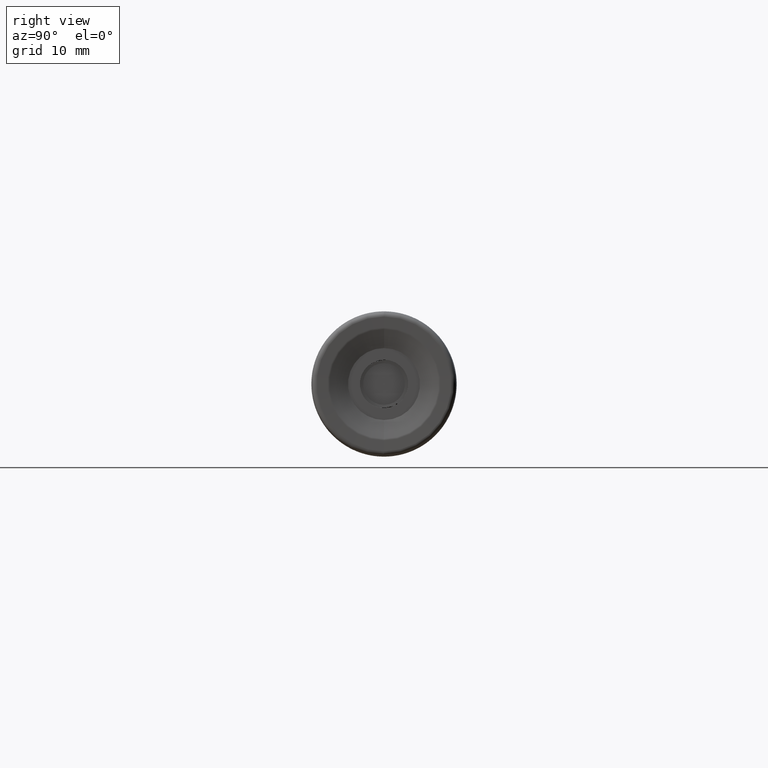
[diagram: clean part render]
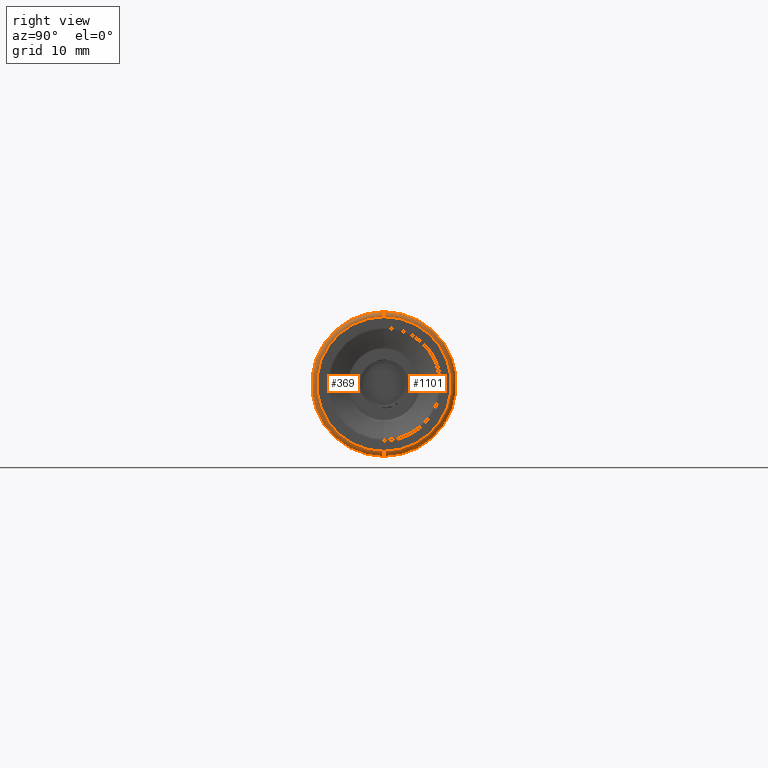
[diagram: same view with one multi-face feature highlighted, each face labeled with its STEP entity id]
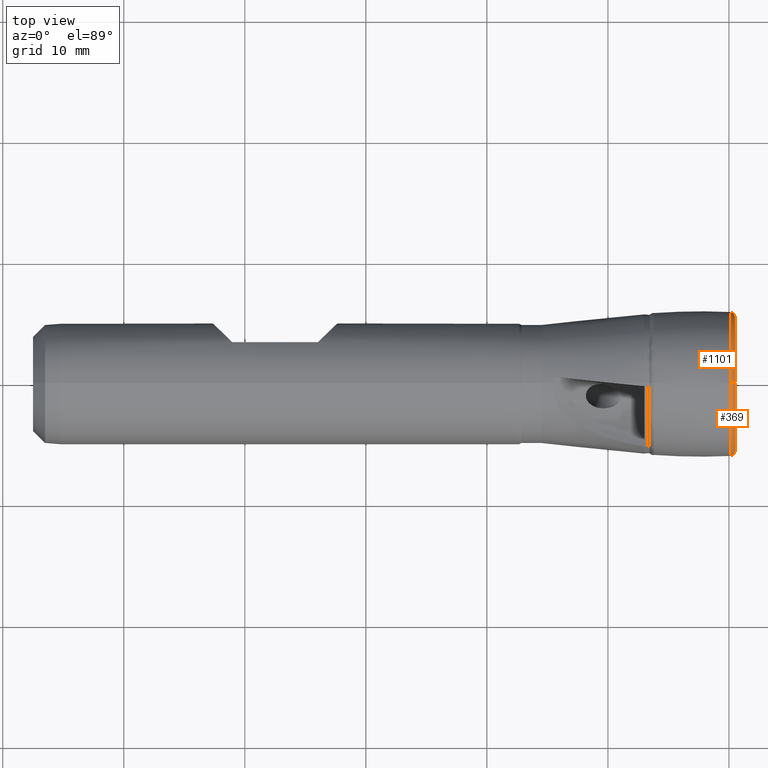
[diagram: same view with one multi-face feature highlighted, each face labeled with its STEP entity id]
A machine part, right view. The highlighted faces form ONE feature: a constant-radius fillet chain: 2 tangent blend faces with common blend radius 0.3973 mm. The faces share edges in the B-rep.
A second angle (top view) of the same feature is appended — it is thin or edge-on in the first view.
Their STEP definitions:
[1] entity #1101 (Torus):
#64 = AXIS2_PLACEMENT_3D ( 'NONE', #2902, #2903, #2904 ) ;
#66 = AXIS2_PLACEMENT_3D ( 'NONE', #2905, #2906, #2907 ) ;
#67 = CIRCLE ( 'NONE', #69, 5.977264221461132900 ) ;
#69 = AXIS2_PLACEMENT_3D ( 'NONE', #2896, #2897, #2898 ) ;
#72 = CIRCLE ( 'NONE', #66, 0.3972863898013979100 ) ;
#74 = CIRCLE ( 'NONE', #64, 0.3972863898013979100 ) ;
#1101 = ADVANCED_FACE ( 'NONE', ( #2154 ), #1389, .T. ) ;
#1217 = EDGE_CURVE ( 'NONE', #2425, #2335, #1656, .T. ) ;
#1221 = EDGE_CURVE ( 'NONE', #2437, #2424, #67, .T. ) ;
#1223 = EDGE_CURVE ( 'NONE', #2424, #2335, #74, .T. ) ;
#1224 = EDGE_CURVE ( 'NONE', #2437, #2425, #72, .T. ) ;
#1246 = ORIENTED_EDGE ( 'NONE', *, *, #1217, .F. ) ;
#1302 = ORIENTED_EDGE ( 'NONE', *, *, #1224, .F. ) ;
#1305 = ORIENTED_EDGE ( 'NONE', *, *, #1223, .T. ) ;
#1311 = ORIENTED_EDGE ( 'NONE', *, *, #1221, .T. ) ;
#1313 = EDGE_LOOP ( 'NONE', ( #1311, #1305, #1246, #1302 ) ) ;
#1389 = TOROIDAL_SURFACE ( 'NONE', #1416, 5.580082788689710900, 0.3972863898013978500 ) ;
#1416 = AXIS2_PLACEMENT_3D ( 'NONE', #2160, #2149, #2162 ) ;
#1648 = AXIS2_PLACEMENT_3D ( 'NONE', #2885, #2886, #2887 ) ;
#1656 = CIRCLE ( 'NONE', #1648, 5.567777955433022000 ) ;
#2149 = DIRECTION ( 'NONE',  ( 1.000000000000000000, -0.0000000000000000000, -0.0000000000000000000 ) ) ;
#2154 = FACE_OUTER_BOUND ( 'NONE', #1313, .T. ) ;
#2160 = CARTESIAN_POINT ( 'NONE',  ( 0.1027136101986048000, 0.0000000000000000000, 0.0000000000000000000 ) ) ;
#2162 = DIRECTION ( 'NONE',  ( 0.0000000000000000000, 0.0000000000000000000, -1.000000000000000000 ) ) ;
#2335 = VERTEX_POINT ( 'NONE', #2960 ) ;
#2424 = VERTEX_POINT ( 'NONE', #3057 ) ;
#2425 = VERTEX_POINT ( 'NONE', #3058 ) ;
#2437 = VERTEX_POINT ( 'NONE', #3070 ) ;
#2885 = CARTESIAN_POINT ( 'NONE',  ( 0.4998094004053949500, 0.0000000000000000000, 0.0000000000000000000 ) ) ;
#2886 = DIRECTION ( 'NONE',  ( 1.000000000000000000, -0.0000000000000000000, -0.0000000000000000000 ) ) ;
#2887 = DIRECTION ( 'NONE',  ( 0.0000000000000000000, 0.0000000000000000000, -1.000000000000000000 ) ) ;
#2896 = CARTESIAN_POINT ( 'NONE',  ( 0.1118451480246776100, 0.0000000000000000000, 0.0000000000000000000 ) ) ;
#2897 = DIRECTION ( 'NONE',  ( 1.000000000000000000, -0.0000000000000000000, -0.0000000000000000000 ) ) ;
#2898 = DIRECTION ( 'NONE',  ( 0.0000000000000000000, 0.0000000000000000000, -1.000000000000000000 ) ) ;
#2902 = CARTESIAN_POINT ( 'NONE',  ( 0.1027136101986048000, 6.833630526146091300E-016, 5.580082788689710900 ) ) ;
#2903 = DIRECTION ( 'NONE',  ( 0.0000000000000000000, 1.000000000000000000, -1.224646799147353200E-016 ) ) ;
#2904 = DIRECTION ( 'NONE',  ( 0.0000000000000000000, 1.224646799147353900E-016, 1.000000000000000000 ) ) ;
#2905 = CARTESIAN_POINT ( 'NONE',  ( 0.1027136101986048000, 0.0000000000000000000, -5.580082788689710900 ) ) ;
#2906 = DIRECTION ( 'NONE',  ( -0.0000000000000000000, -1.000000000000000000, -0.0000000000000000000 ) ) ;
#2907 = DIRECTION ( 'NONE',  ( 0.0000000000000000000, 0.0000000000000000000, -1.000000000000000000 ) ) ;
#2960 = CARTESIAN_POINT ( 'NONE',  ( 0.4998094004053949500, 7.069299473977309300E-016, 5.567777955433022000 ) ) ;
#3057 = CARTESIAN_POINT ( 'NONE',  ( 0.1118451480246774600, 7.320037496470362900E-016, 5.977264221461121400 ) ) ;
#3058 = CARTESIAN_POINT ( 'NONE',  ( 0.4998094004053949500, 0.0000000000000000000, -5.567777955433022000 ) ) ;
#3070 = CARTESIAN_POINT ( 'NONE',  ( 0.1118451480246774600, 0.0000000000000000000, -5.977264221461121400 ) ) ;
[2] entity #369 (Torus):
#64 = AXIS2_PLACEMENT_3D ( 'NONE', #2902, #2903, #2904 ) ;
#66 = AXIS2_PLACEMENT_3D ( 'NONE', #2905, #2906, #2907 ) ;
#72 = CIRCLE ( 'NONE', #66, 0.3972863898013979100 ) ;
#74 = CIRCLE ( 'NONE', #64, 0.3972863898013979100 ) ;
#108 = EDGE_LOOP ( 'NONE', ( #1580, #1546, #1617, #1616 ) ) ;
#369 = ADVANCED_FACE ( 'NONE', ( #922 ), #1517, .T. ) ;
#451 = EDGE_CURVE ( 'NONE', #2424, #2437, #1341, .T. ) ;
#922 = FACE_OUTER_BOUND ( 'NONE', #108, .T. ) ;
#924 = DIRECTION ( 'NONE',  ( 1.000000000000000000, -0.0000000000000000000, -0.0000000000000000000 ) ) ;
#927 = CARTESIAN_POINT ( 'NONE',  ( 0.1027136101986048000, 0.0000000000000000000, 0.0000000000000000000 ) ) ;
#929 = DIRECTION ( 'NONE',  ( 0.0000000000000000000, 0.0000000000000000000, -1.000000000000000000 ) ) ;
#1218 = EDGE_CURVE ( 'NONE', #2335, #2425, #1650, .T. ) ;
#1223 = EDGE_CURVE ( 'NONE', #2424, #2335, #74, .T. ) ;
#1224 = EDGE_CURVE ( 'NONE', #2437, #2425, #72, .T. ) ;
#1341 = CIRCLE ( 'NONE', #1386, 5.977264221461132900 ) ;
#1386 = AXIS2_PLACEMENT_3D ( 'NONE', #1816, #1817, #1818 ) ;
#1493 = AXIS2_PLACEMENT_3D ( 'NONE', #927, #924, #929 ) ;
#1517 = TOROIDAL_SURFACE ( 'NONE', #1493, 5.580082788689710900, 0.3972863898013978500 ) ;
#1546 = ORIENTED_EDGE ( 'NONE', *, *, #451, .T. ) ;
#1580 = ORIENTED_EDGE ( 'NONE', *, *, #1223, .F. ) ;
#1616 = ORIENTED_EDGE ( 'NONE', *, *, #1218, .F. ) ;
#1617 = ORIENTED_EDGE ( 'NONE', *, *, #1224, .T. ) ;
#1649 = AXIS2_PLACEMENT_3D ( 'NONE', #2889, #2890, #2891 ) ;
#1650 = CIRCLE ( 'NONE', #1649, 5.567777955433022000 ) ;
#1816 = CARTESIAN_POINT ( 'NONE',  ( 0.1118451480246776100, 0.0000000000000000000, 0.0000000000000000000 ) ) ;
#1817 = DIRECTION ( 'NONE',  ( 1.000000000000000000, -0.0000000000000000000, -0.0000000000000000000 ) ) ;
#1818 = DIRECTION ( 'NONE',  ( 0.0000000000000000000, 0.0000000000000000000, -1.000000000000000000 ) ) ;
#2335 = VERTEX_POINT ( 'NONE', #2960 ) ;
#2424 = VERTEX_POINT ( 'NONE', #3057 ) ;
#2425 = VERTEX_POINT ( 'NONE', #3058 ) ;
#2437 = VERTEX_POINT ( 'NONE', #3070 ) ;
#2889 = CARTESIAN_POINT ( 'NONE',  ( 0.4998094004053949500, 0.0000000000000000000, 0.0000000000000000000 ) ) ;
#2890 = DIRECTION ( 'NONE',  ( 1.000000000000000000, -0.0000000000000000000, -0.0000000000000000000 ) ) ;
#2891 = DIRECTION ( 'NONE',  ( 0.0000000000000000000, 0.0000000000000000000, -1.000000000000000000 ) ) ;
#2902 = CARTESIAN_POINT ( 'NONE',  ( 0.1027136101986048000, 6.833630526146091300E-016, 5.580082788689710900 ) ) ;
#2903 = DIRECTION ( 'NONE',  ( 0.0000000000000000000, 1.000000000000000000, -1.224646799147353200E-016 ) ) ;
#2904 = DIRECTION ( 'NONE',  ( 0.0000000000000000000, 1.224646799147353900E-016, 1.000000000000000000 ) ) ;
#2905 = CARTESIAN_POINT ( 'NONE',  ( 0.1027136101986048000, 0.0000000000000000000, -5.580082788689710900 ) ) ;
#2906 = DIRECTION ( 'NONE',  ( -0.0000000000000000000, -1.000000000000000000, -0.0000000000000000000 ) ) ;
#2907 = DIRECTION ( 'NONE',  ( 0.0000000000000000000, 0.0000000000000000000, -1.000000000000000000 ) ) ;
#2960 = CARTESIAN_POINT ( 'NONE',  ( 0.4998094004053949500, 7.069299473977309300E-016, 5.567777955433022000 ) ) ;
#3057 = CARTESIAN_POINT ( 'NONE',  ( 0.1118451480246774600, 7.320037496470362900E-016, 5.977264221461121400 ) ) ;
#3058 = CARTESIAN_POINT ( 'NONE',  ( 0.4998094004053949500, 0.0000000000000000000, -5.567777955433022000 ) ) ;
#3070 = CARTESIAN_POINT ( 'NONE',  ( 0.1118451480246774600, 0.0000000000000000000, -5.977264221461121400 ) ) ;